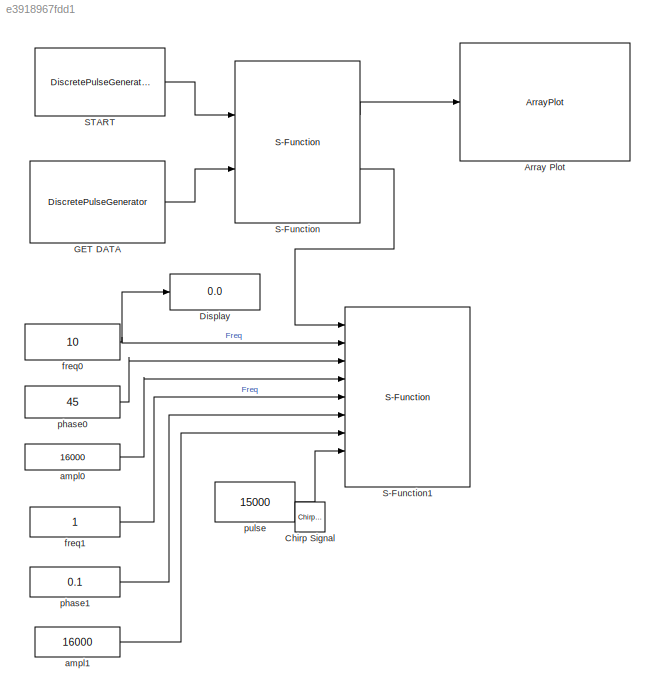
MODEL slx_e3918967fdd1
KIND model
CONFIG AbsTol = auto
CONFIG EnableMultiTasking = off
CONFIG FixedStep = auto
CONFIG MaxStep = auto
CONFIG MinStep = auto
CONFIG RelTol = 1e-3
CONFIG SampleTimeConstraint = Unconstrained
CONFIG Solver = FixedStepDiscrete
CONFIG SolverName = FixedStepDiscrete
CONFIG StartTime = 0.0
CONFIG StopTime = 500
BLOCK [ArrayPlot] Array Plot
  NumInputPorts = 1
  Ports = [1]
  ScopeSpecificationString = dsp.scopes.ArrayPlotBlockSpecification('CurrentConfiguration', extmgr.ConfigurationSet(extmgr.Configuration('Core','General UI',true),extmgr.Configuration('Core','Source UI',true),extmgr.Configuration('Sources','WiredSimulink',true),extmgr.Configuration('Visuals','Array Plot',true,'DisplayPropertyDefaults',struct('MinYLimReal','-13060','MaxYLimReal','12420','YLabelReal','Amplitude','MinYLimMag','0...<+1600ch>
BLOCK [Reference] Chirp Signal  REF=simulink/Sources/Chirp Signal
  IOType = siggen
  Ports = [0, 1]
  SourceBlock = simulink/Sources/Chirp Signal
  SourceProductBaseCode = SL
  SourceProductName = Simulink
  SourceType = chirp
BLOCK [Display] Display
  Decimation = 1
  Ports = [1]
BLOCK [DiscretePulseGenerator] GET DATA 
  Amplitude = 512
  Period = 0.1
  Ports = [0, 1]
  PulseType = Time based
  PulseWidth = 10
  SampleTime = 0.0001
BLOCK [S-Function] S-Function
  EnableBusSupport = off
  FunctionName = sm_adc
  Parameters = 'SimulinkAdc' 1024
  Ports = [2, 2]
  SFcnIsStateOwnerBlock = off
  SFunctionDeploymentMode = off
BLOCK [S-Function] S-Function1
  EnableBusSupport = off
  FunctionName = sm_ctrl
  Parameters = 'SimulinkCtrl'
  Ports = [9, 1]
  SFcnIsStateOwnerBlock = off
  SFunctionDeploymentMode = off
BLOCK [DiscretePulseGenerator] START
  Amplitude = 400
  Period = 0.1
  PhaseDelay = 0.08
  Ports = [0, 1]
  PulseType = Time based
  PulseWidth = 10
  SampleTime = 0.0001
BLOCK [Constant] ampl0 
  Value = 16000
BLOCK [Constant] ampl1
  Value = 16000
BLOCK [Constant] freq0
  Value = 10
BLOCK [Constant] freq1
BLOCK [Constant] phase0
  Value = 45
BLOCK [Constant] phase1
  Value = 0.1
BLOCK [Constant] pulse
  Value = 15000
LINE GET DATA :1 -> S-Function:2
LINE S-Function:1 -> Array Plot:1
LINE S-Function:2 -> S-Function1:1
LINE START:1 -> S-Function:1
LINE ampl0 :1 -> S-Function1:4
LINE ampl1:1 -> S-Function1:7
NET freq0:1 -> Display:1, S-Function1:2
LINE freq1:1 -> S-Function1:5
LINE phase0:1 -> S-Function1:3
LINE phase1:1 -> S-Function1:6
LINE pulse:1 -> S-Function1:8
note: NET lines group one-source signal fan-out (src -> all destinations, sorted); 1:1 wires keep LINE
